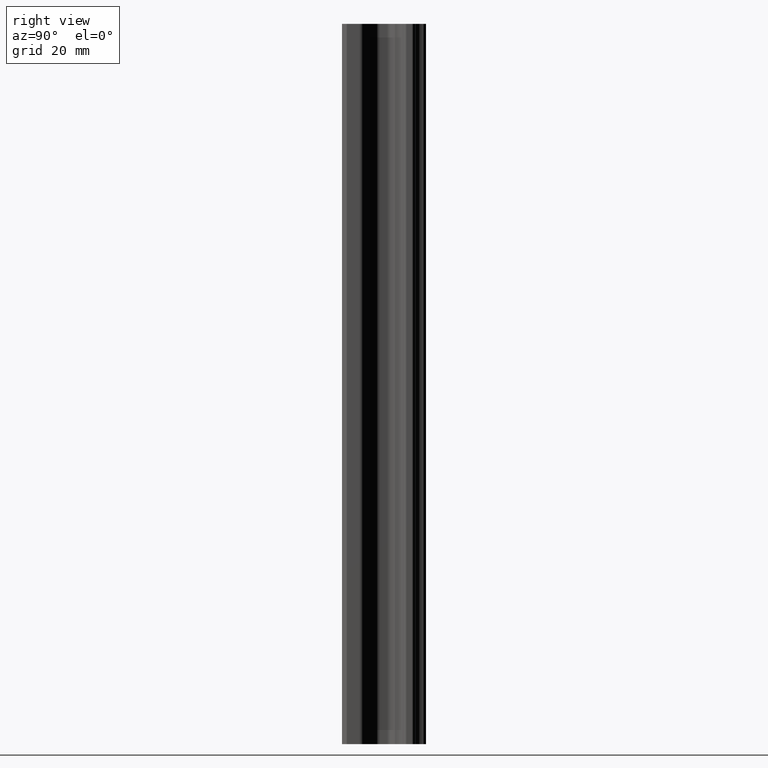
[diagram: clean part render]
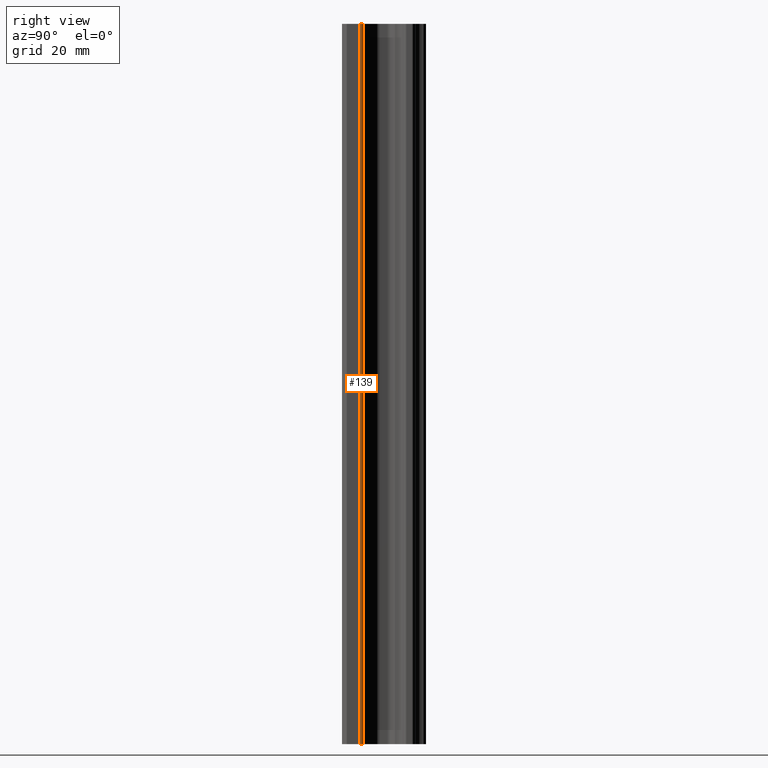
[diagram: same view with one face highlighted and labeled with its STEP entity id]
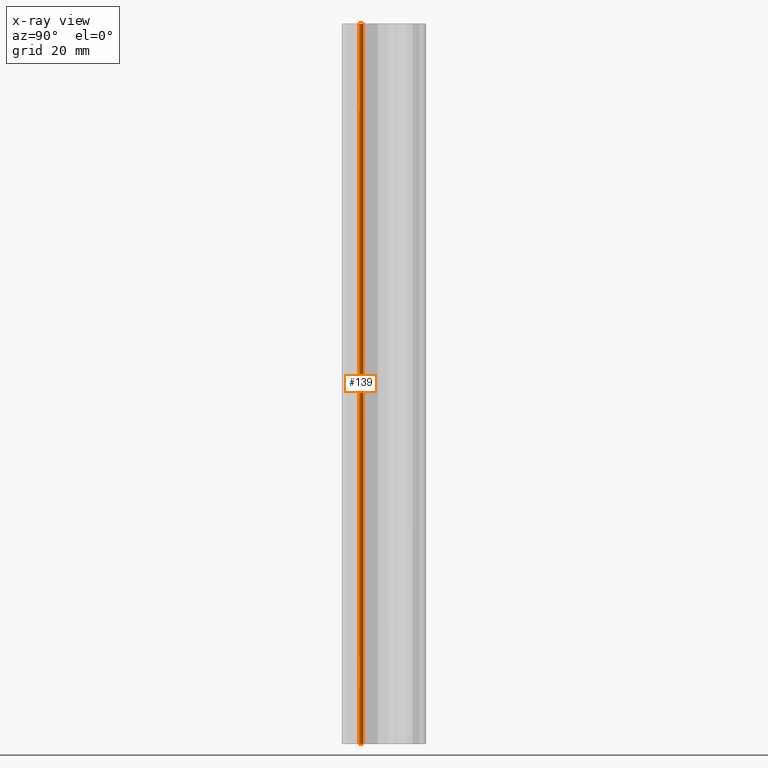
[diagram: x-ray of the same camera — body ghosted, the highlighted face saturated]
A machine part, right view. The second image highlights one B-rep face of the part: STEP entity #139.
The next image is the same camera in x-ray: the body ghosted, the highlighted face saturated — about 0% of this face is hidden behind the body in this view.
In plain terms, the highlighted cylindrical surface (edge-blend (fillet) strip) has radius 1 mm, axis along (0, 0, 1).
Its self-contained STEP definition (entity closure, byte-faithful):
#130 = VERTEX_POINT ( 'NONE', #450 ) ;
#131 = ORIENTED_EDGE ( 'NONE', *, *, #132, .T. ) ;
#132 = EDGE_CURVE ( 'NONE', #172, #133, #449, .T. ) ;
#133 = VERTEX_POINT ( 'NONE', #444 ) ;
#134 = VERTEX_POINT ( 'NONE', #443 ) ;
#139 = ADVANCED_FACE ( 'NONE', ( #442 ), #439, .T. ) ;
#140 = EDGE_CURVE ( 'NONE', #134, #130, #435, .T. ) ;
#171 = EDGE_CURVE ( 'NONE', #172, #130, #499, .T. ) ;
#172 = VERTEX_POINT ( 'NONE', #495 ) ;
#174 = EDGE_LOOP ( 'NONE', ( #252, #131, #206, #208 ) ) ;
#206 = ORIENTED_EDGE ( 'NONE', *, *, #207, .F. ) ;
#207 = EDGE_CURVE ( 'NONE', #134, #133, #562, .T. ) ;
#208 = ORIENTED_EDGE ( 'NONE', *, *, #140, .T. ) ;
#252 = ORIENTED_EDGE ( 'NONE', *, *, #171, .F. ) ;
#432 = DIRECTION ( 'NONE',  ( 1.000000000000000000, 1.734723475976805500E-015, 0.0000000000000000000 ) ) ;
#433 = DIRECTION ( 'NONE',  ( 0.0000000000000000000, 0.0000000000000000000, -1.000000000000000000 ) ) ;
#434 = AXIS2_PLACEMENT_3D ( 'NONE', #440, #433, #432 ) ;
#435 = CIRCLE ( 'NONE', #434, 1.000000000000000900 ) ;
#436 = DIRECTION ( 'NONE',  ( 1.000000000000000000, 0.0000000000000000000, 0.0000000000000000000 ) ) ;
#437 = DIRECTION ( 'NONE',  ( 0.0000000000000000000, 0.0000000000000000000, 1.000000000000000000 ) ) ;
#438 = AXIS2_PLACEMENT_3D ( 'NONE', #441, #437, #436 ) ;
#439 = CYLINDRICAL_SURFACE ( 'NONE', #438, 1.000000000000000900 ) ;
#440 = CARTESIAN_POINT ( 'NONE',  ( 9.000000000000001800, -13.84349295120000000, 75.00000000000000000 ) ) ;
#441 = CARTESIAN_POINT ( 'NONE',  ( 9.000000000000001800, -13.84349295120000000, -75.00000000000000000 ) ) ;
#442 = FACE_OUTER_BOUND ( 'NONE', #174, .T. ) ;
#443 = CARTESIAN_POINT ( 'NONE',  ( 9.707106781173969500, -13.13638617000047000, 75.00000000000000000 ) ) ;
#444 = CARTESIAN_POINT ( 'NONE',  ( 9.707106781173969500, -13.13638617000047000, -75.00000000000000000 ) ) ;
#445 = DIRECTION ( 'NONE',  ( 1.000000000000000000, 0.0000000000000000000, 0.0000000000000000000 ) ) ;
#446 = DIRECTION ( 'NONE',  ( 0.0000000000000000000, 0.0000000000000000000, 1.000000000000000000 ) ) ;
#447 = CARTESIAN_POINT ( 'NONE',  ( 9.000000000000001800, -13.84349295120000000, -75.00000000000000000 ) ) ;
#448 = AXIS2_PLACEMENT_3D ( 'NONE', #447, #446, #445 ) ;
#449 = CIRCLE ( 'NONE', #448, 1.000000000000000900 ) ;
#450 = CARTESIAN_POINT ( 'NONE',  ( 10.00000000000000000, -13.84349295120000000, 75.00000000000000000 ) ) ;
#495 = CARTESIAN_POINT ( 'NONE',  ( 10.00000000000000000, -13.84349295120000000, -75.00000000000000000 ) ) ;
#496 = DIRECTION ( 'NONE',  ( 0.0000000000000000000, 0.0000000000000000000, 1.000000000000000000 ) ) ;
#497 = VECTOR ( 'NONE', #496, 1000.000000000000000 ) ;
#498 = CARTESIAN_POINT ( 'NONE',  ( 10.00000000000000000, -13.84349295120000000, -75.00000000000000000 ) ) ;
#499 = LINE ( 'NONE', #498, #497 ) ;
#555 = DIRECTION ( 'NONE',  ( 0.0000000000000000000, 0.0000000000000000000, -1.000000000000000000 ) ) ;
#556 = VECTOR ( 'NONE', #555, 1000.000000000000000 ) ;
#557 = CARTESIAN_POINT ( 'NONE',  ( 9.707106781173498800, -13.13638616999950100, -75.00000000000000000 ) ) ;
#562 = LINE ( 'NONE', #557, #556 ) ;